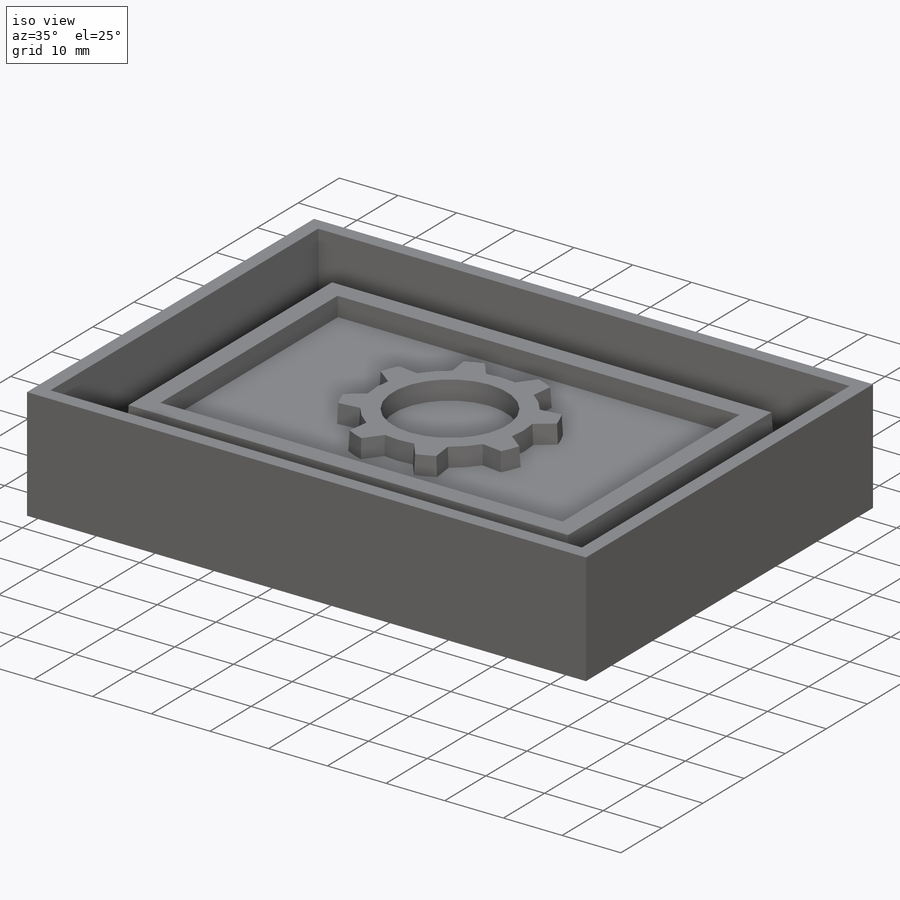
[diagram: iso view]
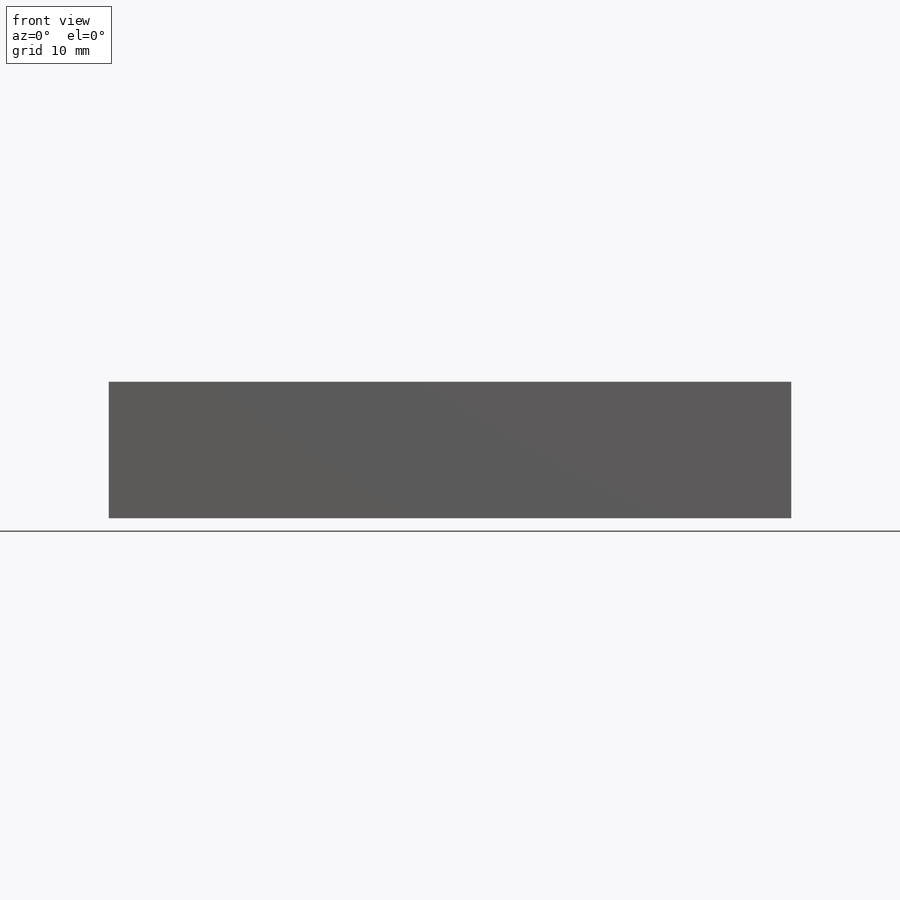
[diagram: front view]
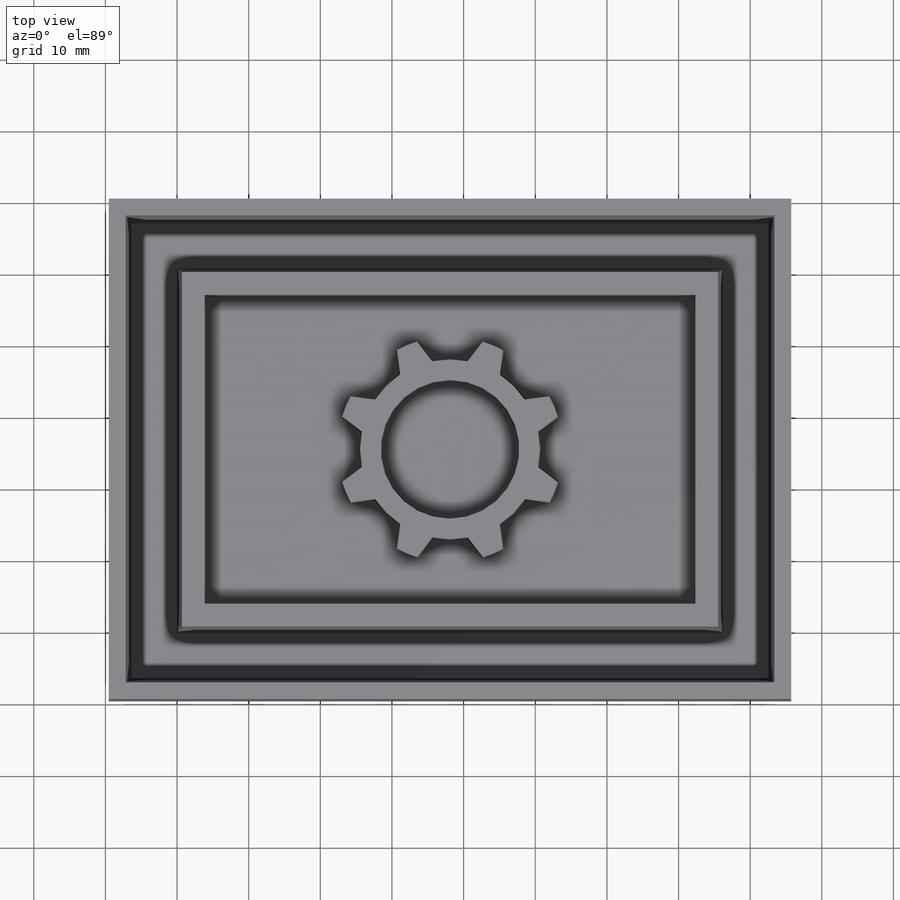
[diagram: top view]
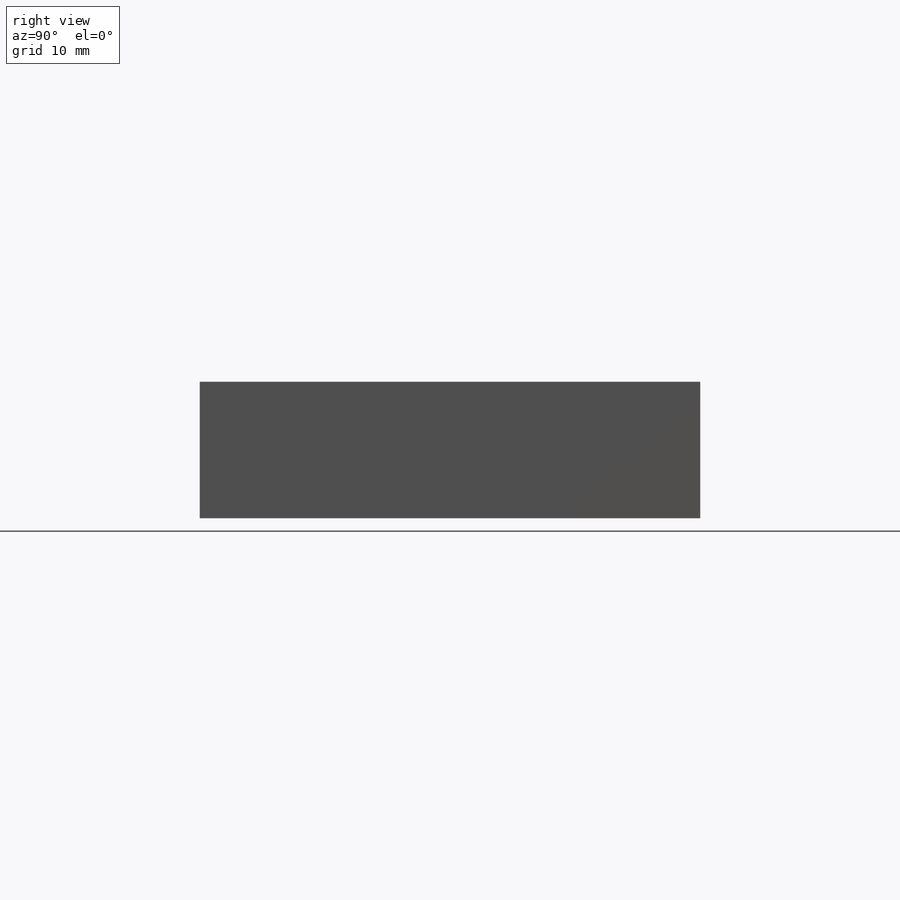
[diagram: right view]
SOLIDWORKS PART (.sldprt)
format: sldprt  version: not decoded by parser v0  size: 340,992 bytes
history: native  units: mm
features: sketch x6, extrude x5, pattern_circular x2, material x1, cut_extrude x1 (+13 scaffold rows collapsed)
feature tree (28):
  scaffold x13  (default folders/planes/origin — collapsed)
  material  "Material <not specified>"
  sketch  "Sketch1"  dims[D1=50.8mm D2=76.2mm]
  extrude  "Boss-Extrude1"  Depth=12.7mm
  sketch  "Sketch2"  dims[D1=69.85mm D2=95.25mm]
  extrude  "Boss-Extrude2"  Depth=3.175mm
  sketch  "Sketch3"  dims[D1=3.175mm]
  extrude  "Boss-Extrude3"  Depth=3.175mm
  sketch  "Sketch4"  dims[D1=3.175mm D2=3.175mm D3=3.175mm D4=3.175mm]
  cut_extrude  "Cut-Extrude1"  Depth=3.175mm
  sketch  "Sketch6"  dims[c1.D1=25.4mm c1.D2=19.05mm c1.D7=31.75mm c1.D3=19.05mm c1.D4=19.05mm c1.D5=~11.457377mm c2.D5=45.0deg c2.D6=25.4mm c3.D6=22.5deg c3.D7=9.525mm c4.D7=45.0deg]
  extrude  "Boss-Extrude5"  [1 undecoded]
  sketch  "Sketch7"  dims[c1.D2=31.75mm c1.D1=12.7mm c2.D1=22.5deg c2.D3=~2.736776mm c3.D3=30.0deg c3.D4=5.08mm]
  extrude  "Boss-Extrude6"  [1 undecoded]
  pattern_circular  "CirPattern1"  Count=8 Angle=360deg
  pattern_circular  "Draft2"  Angle=3deg  [1 undecoded]
decode coverage: 12 of 14 modeling features carry decoded parameters
note: ~ marks probable driven/reference dimensions
note: 3 parameter values undecoded
note: suppression state not decoded; provenance and decode notes live in map.json
